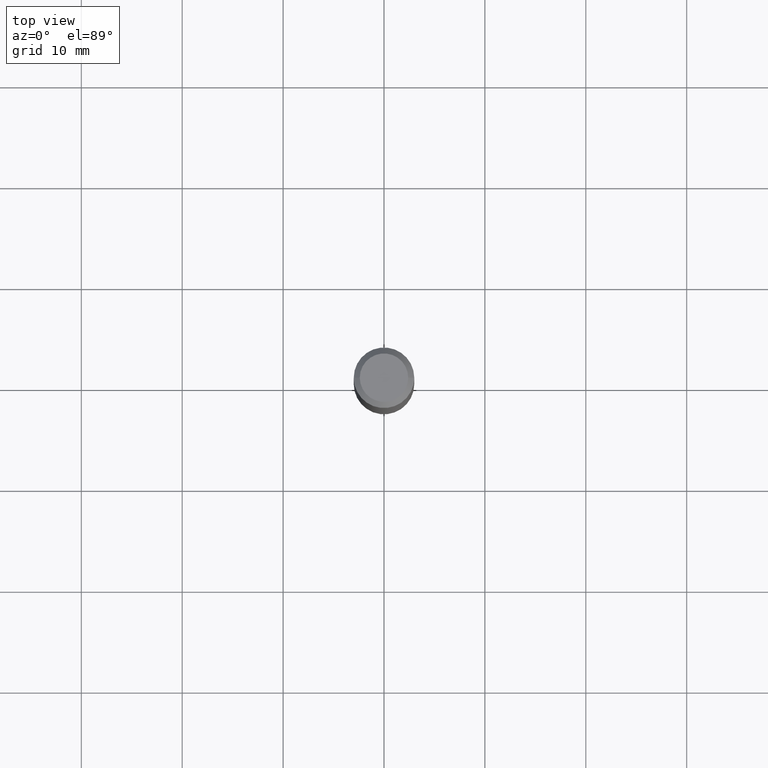
[diagram: clean part render]
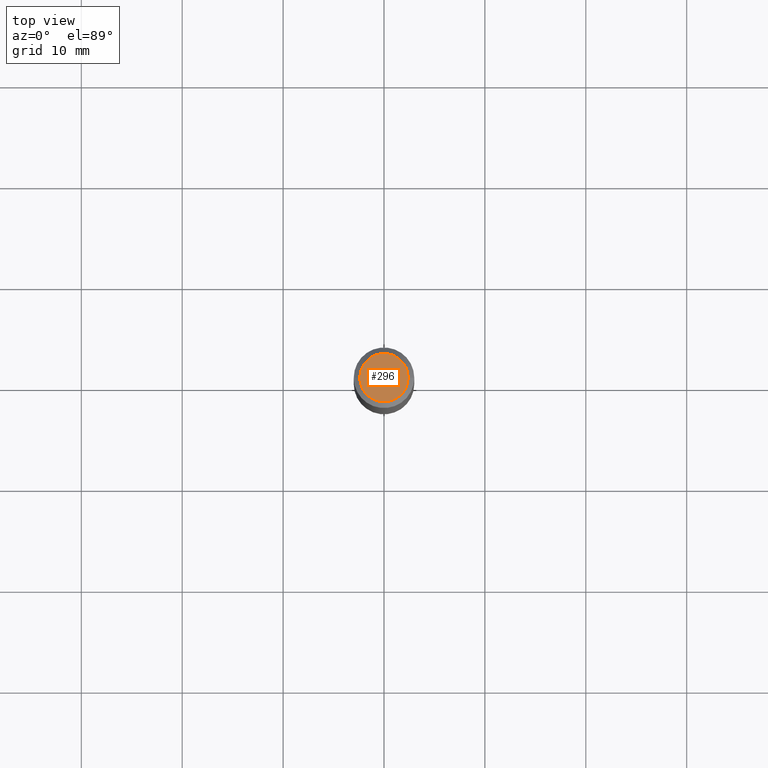
[diagram: same view with one face highlighted and labeled with its STEP entity id]
A machine part, top view. The second image highlights one B-rep face of the part: STEP entity #296.
In plain terms, the highlighted planar face has unit normal (0, -0, -1).
Its self-contained STEP definition (entity closure, byte-faithful):
#3 = VERTEX_POINT ( 'NONE', #260 ) ;
#15 = CIRCLE ( 'NONE', #211, 0.09447999999999998066 ) ;
#20 = CARTESIAN_POINT ( 'NONE',  ( 0.09447999999999998066, -7.704367267948738690E-16, -2.700101262759583929E-17 ) ) ;
#61 = DIRECTION ( 'NONE',  ( 1.000000000000000000, -6.982962677686267499E-15, 4.875432709231658792E-29 ) ) ;
#93 = CARTESIAN_POINT ( 'NONE',  ( 6.603013411620882309E-46, -9.427353171913646324E-32, -2.700101262760083747E-17 ) ) ;
#135 = AXIS2_PLACEMENT_3D ( 'NONE', #320, #358, #203 ) ;
#137 = CARTESIAN_POINT ( 'NONE',  ( 6.603013411620882309E-46, -9.427353171913646324E-32, -2.700101262760083747E-17 ) ) ;
#166 = PLANE ( 'NONE',  #135 ) ;
#203 = DIRECTION ( 'NONE',  ( -1.000000000000000000, 6.982962677686265922E-15, -4.876176775795935793E-29 ) ) ;
#211 = AXIS2_PLACEMENT_3D ( 'NONE', #93, #357, #61 ) ;
#226 = ORIENTED_EDGE ( 'NONE', *, *, #235, .T. ) ;
#235 = EDGE_CURVE ( 'NONE', #248, #3, #15, .T. ) ;
#248 = VERTEX_POINT ( 'NONE', #20 ) ;
#249 = DIRECTION ( 'NONE',  ( -2.445468806185136597E-29, 3.491481338843145583E-15, 1.000000000000000000 ) ) ;
#260 = CARTESIAN_POINT ( 'NONE',  ( -0.09447999999999998066, 7.009847083995354710E-16, -2.700101262760559836E-17 ) ) ;
#296 = ADVANCED_FACE ( 'NONE', ( #443 ), #166, .F. ) ;
#313 = EDGE_CURVE ( 'NONE', #3, #248, #395, .T. ) ;
#320 = CARTESIAN_POINT ( 'NONE',  ( 3.301506705810441154E-46, -4.713676585956823162E-32, -1.350050631380041873E-17 ) ) ;
#353 = DIRECTION ( 'NONE',  ( 1.000000000000000000, -6.982962677686267499E-15, 4.875432709231658792E-29 ) ) ;
#357 = DIRECTION ( 'NONE',  ( -2.445468806185136597E-29, 3.491481338843145583E-15, 1.000000000000000000 ) ) ;
#358 = DIRECTION ( 'NONE',  ( 2.438088387897960049E-29, -3.491481338843145188E-15, -1.000000000000000000 ) ) ;
#395 = CIRCLE ( 'NONE', #413, 0.09447999999999998066 ) ;
#413 = AXIS2_PLACEMENT_3D ( 'NONE', #137, #249, #353 ) ;
#435 = ORIENTED_EDGE ( 'NONE', *, *, #313, .T. ) ;
#443 = FACE_OUTER_BOUND ( 'NONE', #472, .T. ) ;
#472 = EDGE_LOOP ( 'NONE', ( #435, #226 ) ) ;